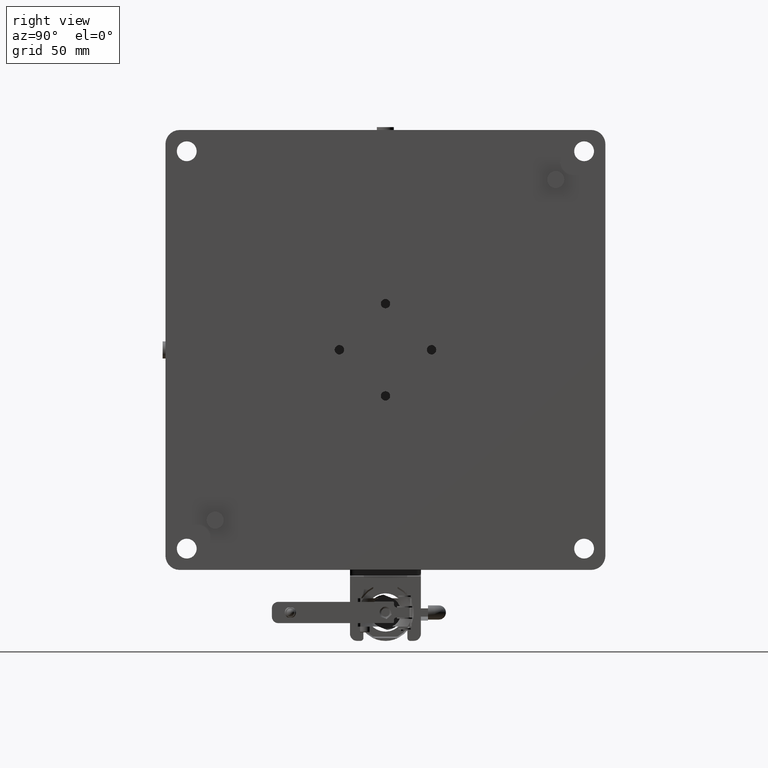
[diagram: clean part render]
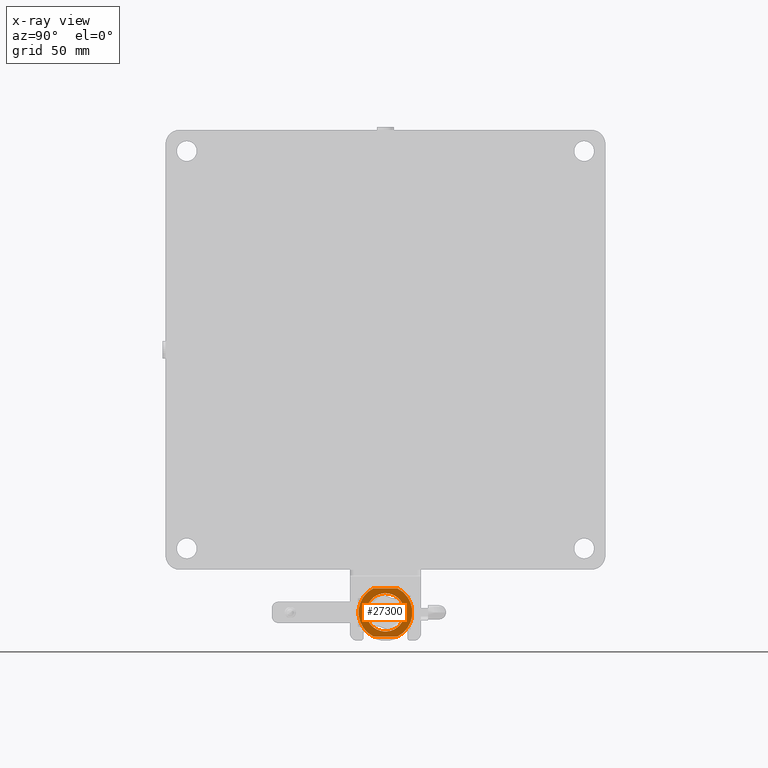
[diagram: x-ray — body ghosted, one internal face saturated and labeled with its STEP entity id]
A machine part, right view, then the same camera in x-ray: the body is ghosted and one INTERNAL B-rep face — a face not visible from any outside direction — is saturated and labeled: STEP entity #27300.
In plain terms, the highlighted planar face has unit normal (1, -0, 0).
Its self-contained STEP definition (entity closure, byte-faithful):
#69 = EDGE_LOOP ( 'NONE', ( #7535, #4747, #5148, #24424 ) ) ;
#293 = CARTESIAN_POINT ( 'NONE',  ( 479.3911129078834392, -41.04289610263640498, 408.5648634992779762 ) ) ;
#434 = CARTESIAN_POINT ( 'NONE',  ( 479.3911129078832687, -47.45056872749770349, 417.0784128677299236 ) ) ;
#555 = PLANE ( 'NONE',  #17380 ) ;
#581 = CARTESIAN_POINT ( 'NONE',  ( 479.3911129078835529, -47.25765047544710029, 416.3403203942483515 ) ) ;
#730 = CARTESIAN_POINT ( 'NONE',  ( 479.3911129078835529, -47.57188809067427115, 417.6388060067503147 ) ) ;
#876 = CARTESIAN_POINT ( 'NONE',  ( 479.3911129078834961, -47.60318222722764858, 417.8015413607919868 ) ) ;
#927 = CARTESIAN_POINT ( 'NONE',  ( 479.3911129078833824, -21.21593948174739097, 423.4883965237435177 ) ) ;
#1021 = CARTESIAN_POINT ( 'NONE',  ( 479.3911129078833255, -45.84672191892308746, 427.3341895144567957 ) ) ;
#1069 = CARTESIAN_POINT ( 'NONE',  ( 479.3911129078833824, -21.02678453667679648, 418.0046822516927136 ) ) ;
#1161 = CARTESIAN_POINT ( 'NONE',  ( 479.3911129078833824, -45.75595492385647844, 427.4789163047911416 ) ) ;
#1173 = EDGE_CURVE ( 'NONE', #13218, #12097, #15788, .T. ) ;
#1211 = CARTESIAN_POINT ( 'NONE',  ( 479.3911129078834961, -20.99699255121158714, 418.1826398307509862 ) ) ;
#1357 = CARTESIAN_POINT ( 'NONE',  ( 479.3911129078836098, -21.07895801851841000, 422.8474598087849472 ) ) ;
#1494 = CARTESIAN_POINT ( 'NONE',  ( 479.3911129078834392, -23.16281932563918744, 427.8646343223767303 ) ) ;
#1778 = CARTESIAN_POINT ( 'NONE',  ( 479.3911129078834392, -30.39016980294125858, 407.3590083248498104 ) ) ;
#1889 = CARTESIAN_POINT ( 'NONE',  ( 479.3911129078833824, -34.33325410461196725, 437.2834046956849079 ) ) ;
#2219 = CARTESIAN_POINT ( 'NONE',  ( 479.3911129078834392, -29.17891359950291275, 407.8058809639541664 ) ) ;
#2227 = CARTESIAN_POINT ( 'NONE',  ( 479.3911129078834392, -34.33325410461196725, 406.7834046956848510 ) ) ;
#2501 = CARTESIAN_POINT ( 'NONE',  ( 479.3911129078834392, -46.22601111404920005, 413.8662807799008192 ) ) ;
#2548 = CARTESIAN_POINT ( 'NONE',  ( 479.3911129078833824, -32.58882583326256110, 433.6730636150631994 ) ) ;
#2640 = CARTESIAN_POINT ( 'NONE',  ( 479.3911129078834961, -47.58755019070942183, 417.7193495826040248 ) ) ;
#2791 = CARTESIAN_POINT ( 'NONE',  ( 479.3911129078834961, -47.61719593827268682, 422.6891311296078584 ) ) ;
#2933 = CARTESIAN_POINT ( 'NONE',  ( 479.3911129078833824, -45.50368888359624009, 412.7021750689962118 ) ) ;
#3083 = CARTESIAN_POINT ( 'NONE',  ( 479.3911129078835529, -39.12404552979111116, 407.6618495588150495 ) ) ;
#3130 = CARTESIAN_POINT ( 'NONE',  ( 479.3911129078834392, -27.13774249562336038, 431.7061055149944764 ) ) ;
#3284 = CARTESIAN_POINT ( 'NONE',  ( 479.3911129078834392, -30.80955455592850711, 433.3283844254457335 ) ) ;
#3379 = CARTESIAN_POINT ( 'NONE',  ( 479.3911129078834392, -45.66455367140459742, 427.6219998205625643 ) ) ;
#3425 = CARTESIAN_POINT ( 'NONE',  ( 479.3911129078832687, -21.79118147795855265, 425.2781153142725543 ) ) ;
#3448 = CARTESIAN_POINT ( 'NONE',  ( 479.3911129078834961, -42.81853547885035027, 403.2834046956849079 ) ) ;
#3522 = CARTESIAN_POINT ( 'NONE',  ( 479.3911129078833824, -46.92529981338773837, 425.1507582753536667 ) ) ;
#3572 = CARTESIAN_POINT ( 'NONE',  ( 479.3911129078834392, -20.94357390681977193, 418.5390914353256449 ) ) ;
#3663 = CARTESIAN_POINT ( 'NONE',  ( 479.3911129078834392, -46.71754967553448523, 425.6767022661965711 ) ) ;
#3712 = CARTESIAN_POINT ( 'NONE',  ( 479.3911129078833824, -31.97830055202541999, 433.5764418044390709 ) ) ;
#3813 = CARTESIAN_POINT ( 'NONE',  ( 479.3911129078833255, -46.90546750695231282, 425.2017546050341252 ) ) ;
#3946 = DIRECTION ( 'NONE',  ( 1.000000000000000000, -1.387778780781444492E-15, 2.775557561562889379E-15 ) ) ;
#3996 = CARTESIAN_POINT ( 'NONE',  ( 479.3911129078833255, -28.63072426523984149, 408.0431156177031653 ) ) ;
#4747 = ORIENTED_EDGE ( 'NONE', *, *, #20475, .T. ) ;
#4850 = CARTESIAN_POINT ( 'NONE',  ( 479.3911129078835529, -46.84299604420902341, 415.2082515081424958 ) ) ;
#4995 = CARTESIAN_POINT ( 'NONE',  ( 479.3911129078834392, -45.88225337756322375, 413.2777593783931138 ) ) ;
#5122 = DIRECTION ( 'NONE',  ( -3.935894180986188723E-17, 1.000000000000000000, -3.935894180986187491E-17 ) ) ;
#5146 = CARTESIAN_POINT ( 'NONE',  ( 479.3911129078832687, -35.36267171817488730, 406.8115768864818165 ) ) ;
#5148 = ORIENTED_EDGE ( 'NONE', *, *, #8555, .T. ) ;
#5290 = CARTESIAN_POINT ( 'NONE',  ( 479.3911129078835529, -47.14966269157289958, 424.5349457023426112 ) ) ;
#5340 = CARTESIAN_POINT ( 'NONE',  ( 479.3911129078834392, -32.05449571968550515, 433.5898676141158035 ) ) ;
#5347 = VERTEX_POINT ( 'NONE', #28857 ) ;
#5442 = CARTESIAN_POINT ( 'NONE',  ( 479.3911129078833824, -36.61201248958536780, 406.9769417772540123 ) ) ;
#5488 = CARTESIAN_POINT ( 'NONE',  ( 479.3911129078834961, -29.41490419529635503, 432.8556180980339150 ) ) ;
#5586 = CARTESIAN_POINT ( 'NONE',  ( 479.3911129078833255, -35.97799190910641443, 433.7082788535595341 ) ) ;
#5638 = CARTESIAN_POINT ( 'NONE',  ( 479.3911129078834961, -21.13283425620549849, 423.1154509818686620 ) ) ;
#5734 = CARTESIAN_POINT ( 'NONE',  ( 479.3911129078833824, -39.35553245618345386, 432.8144661588661393 ) ) ;
#5762 = ORIENTED_EDGE ( 'NONE', *, *, #12264, .T. ) ;
#5777 = AXIS2_PLACEMENT_3D ( 'NONE', #15656, #15513, #19933 ) ;
#5779 = CARTESIAN_POINT ( 'NONE',  ( 479.3911129078834392, -31.44640937151697102, 433.4784084877641703 ) ) ;
#5869 = CARTESIAN_POINT ( 'NONE',  ( 479.3911129078834392, -46.89588657479356471, 425.2261820878060803 ) ) ;
#5918 = CARTESIAN_POINT ( 'NONE',  ( 479.3911129078834961, -21.77062163443012821, 415.3406273035665208 ) ) ;
#6199 = CARTESIAN_POINT ( 'NONE',  ( 479.3911129078834392, -22.81978629030382066, 413.2326198768796530 ) ) ;
#6340 = CARTESIAN_POINT ( 'NONE',  ( 479.3911129078833824, -26.84861717285739502, 409.0480323461864032 ) ) ;
#6487 = CARTESIAN_POINT ( 'NONE',  ( 479.3911129078834392, -25.63352840535150889, 409.9418403223812106 ) ) ;
#6642 = CARTESIAN_POINT ( 'NONE',  ( 479.3911129078833824, -26.89821163976415619, 409.0151602781526776 ) ) ;
#7069 = CARTESIAN_POINT ( 'NONE',  ( 479.3911129078834961, -45.60149852212632737, 412.8483622308094709 ) ) ;
#7203 = CARTESIAN_POINT ( 'NONE',  ( 479.3911129078835529, -47.04650717200176757, 415.7210387487189678 ) ) ;
#7352 = CARTESIAN_POINT ( 'NONE',  ( 479.3911129078834961, -47.61285274583664773, 422.7130094328859400 ) ) ;
#7503 = CARTESIAN_POINT ( 'NONE',  ( 479.3911129078835529, -34.74602836896479374, 406.7834046956848510 ) ) ;
#7535 = ORIENTED_EDGE ( 'NONE', *, *, #22567, .T. ) ;
#7655 = CARTESIAN_POINT ( 'NONE',  ( 479.3911129078835529, -36.68820765722600186, 406.9903675869309154 ) ) ;
#7702 = CARTESIAN_POINT ( 'NONE',  ( 479.3911129078833824, -21.82351216503194991, 425.3585578832606870 ) ) ;
#7800 = CARTESIAN_POINT ( 'NONE',  ( 479.3911129078836666, -36.84356708012489179, 433.5479832068118071 ) ) ;
#7848 = CARTESIAN_POINT ( 'NONE',  ( 479.3911129078833824, -20.90841239872669632, 421.9283178287251985 ) ) ;
#7937 = EDGE_LOOP ( 'NONE', ( #10155, #5762 ) ) ;
#7945 = CARTESIAN_POINT ( 'NONE',  ( 479.3911129078834392, -44.53792663617856107, 429.1705627042092033 ) ) ;
#7990 = CARTESIAN_POINT ( 'NONE',  ( 479.3911129078834392, -27.62361210684497337, 432.0019458922252511 ) ) ;
#8089 = CARTESIAN_POINT ( 'NONE',  ( 479.3911129078834392, -41.81789103636492655, 431.5187770451767619 ) ) ;
#8136 = CARTESIAN_POINT ( 'NONE',  ( 479.3911129078833255, -21.62000103723831756, 424.8457706427301446 ) ) ;
#8184 = CARTESIAN_POINT ( 'NONE',  ( 479.3911129078833824, -34.33325410461196014, 433.7834046956849647 ) ) ;
#8224 = CARTESIAN_POINT ( 'NONE',  ( 479.3911129078834392, -45.12293086061061587, 428.4505210995325797 ) ) ;
#8275 = CARTESIAN_POINT ( 'NONE',  ( 479.3911129078833824, -21.85573037285204023, 425.4377452007603893 ) ) ;
#8555 = EDGE_CURVE ( 'NONE', #21320, #13218, #11465, .T. ) ;
#8559 = CARTESIAN_POINT ( 'NONE',  ( 479.3911129078834392, -31.85138529070875180, 407.0134775871939041 ) ) ;
#8701 = CARTESIAN_POINT ( 'NONE',  ( 479.3911129078834392, -27.32760878709949637, 408.7344054228762502 ) ) ;
#8846 = CARTESIAN_POINT ( 'NONE',  ( 479.3911129078833824, -29.77088815751205431, 407.5701516282952070 ) ) ;
#9269 = CARTESIAN_POINT ( 'NONE',  ( 479.3911129078834961, -39.25160401395407916, 407.7111912933436884 ) ) ;
#9419 = CARTESIAN_POINT ( 'NONE',  ( 479.3911129078834392, -47.59783261572695778, 417.7730917201383249 ) ) ;
#9562 = CARTESIAN_POINT ( 'NONE',  ( 479.3911129078834392, -39.20060768426661468, 407.6913589869073462 ) ) ;
#9643 = VERTEX_POINT ( 'NONE', #2227 ) ;
#9713 = CARTESIAN_POINT ( 'NONE',  ( 479.3911129078834961, -47.62629510807609279, 422.6383371971647307 ) ) ;
#9863 = CARTESIAN_POINT ( 'NONE',  ( 479.3911129078834961, -36.76285884181676522, 407.0038060544607106 ) ) ;
#9914 = CARTESIAN_POINT ( 'NONE',  ( 479.3911129078834392, -29.72158132631732741, 432.9721419438830026 ) ) ;
#10008 = CARTESIAN_POINT ( 'NONE',  ( 479.3911129078834392, -38.89562005130579792, 432.9966577631706173 ) ) ;
#10055 = CARTESIAN_POINT ( 'NONE',  ( 479.3911129078835529, -29.46590052500906864, 432.8754504044774762 ) ) ;
#10152 = CARTESIAN_POINT ( 'NONE',  ( 479.3911129078833824, -39.32796472322169734, 432.8254773223313236 ) ) ;
#10155 = ORIENTED_EDGE ( 'NONE', *, *, #23424, .T. ) ;
#10196 = CARTESIAN_POINT ( 'NONE',  ( 479.3911129078835529, -21.51684551760859421, 416.0318636891767596 ) ) ;
#10339 = CARTESIAN_POINT ( 'NONE',  ( 479.3911129078834392, -28.31968565452520181, 432.3852275639279696 ) ) ;
#10430 = CARTESIAN_POINT ( 'NONE',  ( 479.3911129078833255, -43.54983015785627032, 430.1587380104502927 ) ) ;
#10477 = CARTESIAN_POINT ( 'NONE',  ( 479.3911129078833255, -22.78425483173158028, 427.2890500131156273 ) ) ;
#10573 = CARTESIAN_POINT ( 'NONE',  ( 479.3911129078833255, -37.53824593220947747, 433.4007193186963605 ) ) ;
#10765 = CARTESIAN_POINT ( 'NONE',  ( 479.3911129078836098, -24.12858157305862150, 411.3962466872166033 ) ) ;
#10909 = CARTESIAN_POINT ( 'NONE',  ( 479.3911129078834392, -34.33325410461196725, 406.7834046956848510 ) ) ;
#11053 = CARTESIAN_POINT ( 'NONE',  ( 479.3911129078833255, -22.61471290826214897, 413.5737626975258081 ) ) ;
#11202 = CARTESIAN_POINT ( 'NONE',  ( 479.3911129078834961, -29.33854348602758932, 407.7413320690324667 ) ) ;
#11465 = LINE ( 'NONE', #16180, #20564 ) ;
#11486 = CARTESIAN_POINT ( 'NONE',  ( 479.3911129078834392, -46.57354318278053285, 414.5808748566024633 ) ) ;
#11631 = CARTESIAN_POINT ( 'NONE',  ( 479.3911129078833824, -36.73899132082330254, 406.9994648568755906 ) ) ;
#11784 = CARTESIAN_POINT ( 'NONE',  ( 479.3911129078834392, -46.87532673126436578, 415.2886940770922024 ) ) ;
#11925 = CARTESIAN_POINT ( 'NONE',  ( 479.3911129078833255, -46.73392956118730979, 414.9451683386891432 ) ) ;
#12067 = CARTESIAN_POINT ( 'NONE',  ( 479.3911129078835529, -41.62492195711173082, 408.9218548515335101 ) ) ;
#12097 = VERTEX_POINT ( 'NONE', #26982 ) ;
#12116 = CARTESIAN_POINT ( 'NONE',  ( 479.3911129078834961, -26.16613770088115487, 431.0730814518123566 ) ) ;
#12264 = EDGE_CURVE ( 'NONE', #9643, #20051, #16424, .T. ) ;
#12270 = CARTESIAN_POINT ( 'NONE',  ( 479.3911129078835529, -30.08171309831453044, 433.0998132827378981 ) ) ;
#12357 = CARTESIAN_POINT ( 'NONE',  ( 479.3911129078836098, -36.81512291852185115, 433.5533318041757980 ) ) ;
#12405 = CARTESIAN_POINT ( 'NONE',  ( 479.3911129078833824, -21.06332598199636408, 422.7652680305776016 ) ) ;
#12482 = AXIS2_PLACEMENT_3D ( 'NONE', #23852, #3946, #19434 ) ;
#12549 = CARTESIAN_POINT ( 'NONE',  ( 479.3911129078834961, -21.74120839582843701, 415.4160511160435476 ) ) ;
#12645 = CARTESIAN_POINT ( 'NONE',  ( 479.3911129078833824, -45.69480394875381535, 427.5750725481989321 ) ) ;
#12696 = CARTESIAN_POINT ( 'NONE',  ( 479.3911129078833824, -31.92751688841470425, 433.5673445344941115 ) ) ;
#12791 = CARTESIAN_POINT ( 'NONE',  ( 479.3911129078833824, -41.76829656947717950, 431.5516491132017904 ) ) ;
#12818 = CIRCLE ( 'NONE', #5777, 18.99999999999990763 ) ;
#12838 = CARTESIAN_POINT ( 'NONE',  ( 479.3911129078834961, -26.75202447789099836, 409.1129699167227045 ) ) ;
#12981 = CARTESIAN_POINT ( 'NONE',  ( 479.3911129078833255, -23.00195453781848087, 412.9448095708037272 ) ) ;
#13126 = CARTESIAN_POINT ( 'NONE',  ( 479.3911129078834961, -22.23143123662289256, 414.2698362450757941 ) ) ;
#13218 = VERTEX_POINT ( 'NONE', #15481 ) ;
#13523 = FACE_OUTER_BOUND ( 'NONE', #69, .T. ) ;
#13675 = DIRECTION ( 'NONE',  ( 1.000000000000000000, -1.103669752617475332E-16, 3.434961711792377367E-15 ) ) ;
#13835 = CARTESIAN_POINT ( 'NONE',  ( 479.3911129078836098, -46.86431556779582053, 415.2611263441234541 ) ) ;
#13978 = CARTESIAN_POINT ( 'NONE',  ( 479.3911129078833255, -43.22041211298489571, 410.0787321639908214 ) ) ;
#14132 = CARTESIAN_POINT ( 'NONE',  ( 479.3911129078834392, -41.52876571369098713, 408.8607038764220647 ) ) ;
#14276 = CARTESIAN_POINT ( 'NONE',  ( 479.3911129078834961, -47.02199135275643727, 424.8950774741896907 ) ) ;
#14324 = CARTESIAN_POINT ( 'NONE',  ( 479.3911129078834961, -29.39047671247486448, 432.8460371658576946 ) ) ;
#14429 = CARTESIAN_POINT ( 'NONE',  ( 479.3911129078834392, -38.58479511119212191, 407.4669961087138290 ) ) ;
#14475 = CARTESIAN_POINT ( 'NONE',  ( 479.3911129078834392, -23.49650253699050850, 428.3402346142379429 ) ) ;
#14577 = CARTESIAN_POINT ( 'NONE',  ( 479.3911129078833255, -42.39008402323946711, 431.1201562632396076 ) ) ;
#14629 = CARTESIAN_POINT ( 'NONE',  ( 479.3911129078835529, -20.83323789248708380, 419.8707180588675101 ) ) ;
#14719 = CARTESIAN_POINT ( 'NONE',  ( 479.3911129078833255, -40.03578394380112115, 432.5236937738273468 ) ) ;
#14765 = CARTESIAN_POINT ( 'NONE',  ( 479.3911129078833824, -23.99168973126824511, 428.9831303948342907 ) ) ;
#14863 = CARTESIAN_POINT ( 'NONE',  ( 479.3911129078835529, -39.48759460966384438, 432.7609284274658989 ) ) ;
#14908 = CARTESIAN_POINT ( 'NONE',  ( 479.3911129078833824, -21.94895853369336081, 414.8901071251298163 ) ) ;
#15003 = CARTESIAN_POINT ( 'NONE',  ( 479.3911129078834392, -41.91448373132990213, 431.4538394746343215 ) ) ;
#15193 = CARTESIAN_POINT ( 'NONE',  ( 479.3911129078834392, -25.11667805136103127, 410.4080713808916130 ) ) ;
#15481 = CARTESIAN_POINT ( 'NONE',  ( 479.3911129078836098, -25.84797273037352383, 403.2834046956847942 ) ) ;
#15490 = CARTESIAN_POINT ( 'NONE',  ( 479.3911129078834392, -27.91613018844147476, 408.3906476864970614 ) ) ;
#15513 = DIRECTION ( 'NONE',  ( 1.000000000000000000, -1.387778780781444492E-15, 2.775557561562889379E-15 ) ) ;
#15598 = LINE ( 'NONE', #1889, #21813 ) ;
#15656 = CARTESIAN_POINT ( 'NONE',  ( 479.3911129078834392, -34.33325410461196725, 420.2834046956849079 ) ) ;
#15788 = CIRCLE ( 'NONE', #12482, 19.00000000000007105 ) ;
#15886 = FACE_BOUND ( 'NONE', #7937, .T. ) ;
#15967 = CARTESIAN_POINT ( 'NONE',  ( 479.3911129078833824, -34.33325410461196014, 433.7834046956849647 ) ) ;
#16061 = CARTESIAN_POINT ( 'NONE',  ( 479.3911129078833824, -46.81077783640095902, 415.1290641906663268 ) ) ;
#16180 = CARTESIAN_POINT ( 'NONE',  ( 479.3911129078834961, -10.55201857732272330, 403.2834046956848510 ) ) ;
#16199 = CARTESIAN_POINT ( 'NONE',  ( 479.3911129078834392, -47.72293430240596024, 422.0277179561099388 ) ) ;
#16343 = CARTESIAN_POINT ( 'NONE',  ( 479.3911129078833824, -47.66951565801336699, 422.3841695606570852 ) ) ;
#16424 = B_SPLINE_CURVE_WITH_KNOTS ( 'NONE', 3,
 ( #16641, #7503, #5146, #23276, #25344, #5442, #7655, #11631, #9863, #25637, #25055, #14429, #16502, #3083, #9562, #9269, #20628, #20923, #20485, #293, #18269, #14132, #12067, #18712, #21071, #13978, #27268, #23125, #22831, #18559, #2933, #27410, #7069, #4995, #2501, #11486, #11925, #16061, #4850, #13835, #11784, #7203, #581, #434, #25196, #730, #2640, #9419, #876, #18417, #27703, #27559, #18862, #16199, #16343, #22976, #9713, #2791, #7352, #25494, #20781, #5290, #14276, #27854, #3522, #3813, #5869, #3663, #21366, #23575, #1021, #1161, #12645, #3379, #8224, #7945, #10430, #21506, #14577, #25934, #15003, #8089, #12791, #16933, #27993, #14719, #21794, #14863, #17072, #5734, #10152, #10008, #19152, #10573, #26367, #19007, #19297, #7800, #12357, #5586, #28145, #16790 ),
 .UNSPECIFIED., .F., .F.,
 ( 4, 1, 1, 1, 1, 2, 2, 1, 1, 1, 1, 2, 2, 1, 1, 1, 2, 2, 2, 1, 1, 1, 2, 2, 1, 1, 1, 1, 2, 2, 1, 1, 1, 1, 2, 2, 2, 1, 1, 1, 1, 2, 2, 1, 1, 1, 1, 2, 2, 1, 1, 1, 2, 2, 2, 1, 1, 1, 2, 2, 1, 1, 1, 1, 2, 2, 1, 1, 1, 1, 2, 2, 4 ),
 ( 0.000000000000000000, 0.03125000000001215000, 0.04687500000001822154, 0.05468750000002123302, 0.05859375000002281508, 0.06054687500002386980, 0.06250000000002491063, 0.09375000000004268808, 0.1093750000000518752, 0.1171875000000564687, 0.1210937500000578565, 0.1230468750000587724, 0.1250000000000597022, 0.1562500000000732747, 0.1718750000000798528, 0.1796875000000831279, 0.1835937500000839884, 0.1875000000000848488, 0.2500000000001081357, 0.2812500000001211253, 0.2968750000001259548, 0.3046875000001283973, 0.3085937500001297296, 0.3125000000001311173, 0.3437500000001363354, 0.3593750000001389444, 0.3671875000001401657, 0.3710937500001423861, 0.3730468750001452727, 0.3750000000001481593, 0.4062500000002022826, 0.4218750000002294276, 0.4296875000002429723, 0.4335937500002497447, 0.4355468750002512435, 0.4375000000002526868, 0.5000000000002651213, 0.5312500000002733369, 0.5468750000002754463, 0.5546875000002744471, 0.5585937500002717826, 0.5605468750002704503, 0.5625000000002691181, 0.5937500000002319256, 0.6093750000002114975, 0.6171875000001992850, 0.6210937500001931788, 0.6230468750001900702, 0.6250000000001869616, 0.6562500000001626477, 0.6718750000001505462, 0.6796875000001445510, 0.6835937500001433298, 0.6875000000001421085, 0.7500000000001102451, 0.7812500000000957012, 0.7968750000000884848, 0.8046875000000839329, 0.8085937500000806022, 0.8125000000000771605, 0.8437500000000509592, 0.8593750000000376366, 0.8671875000000319744, 0.8710937500000286438, 0.8730468750000266454, 0.8750000000000247580, 0.9062500000000144329, 0.9218750000000092149, 0.9296875000000066613, 0.9335937500000056621, 0.9355468750000052180, 0.9375000000000047740, 1.000000000000000000 ),
 .UNSPECIFIED. ) ;
#16502 = CARTESIAN_POINT ( 'NONE',  ( 479.3911129078836098, -38.94492688307153117, 407.5946674475345048 ) ) ;
#16641 = CARTESIAN_POINT ( 'NONE',  ( 479.3911129078834392, -34.33325410461196725, 406.7834046956848510 ) ) ;
#16691 = CARTESIAN_POINT ( 'NONE',  ( 479.3911129078834961, -21.06867559349895203, 422.7937176712410974 ) ) ;
#16790 = CARTESIAN_POINT ( 'NONE',  ( 479.3911129078833824, -34.33325410461196014, 433.7834046956849647 ) ) ;
#16835 = CARTESIAN_POINT ( 'NONE',  ( 479.3911129078833824, -22.09296502653642236, 425.9859345349496493 ) ) ;
#16933 = CARTESIAN_POINT ( 'NONE',  ( 479.3911129078834392, -41.33889942198506162, 431.8324039686162905 ) ) ;
#16981 = CARTESIAN_POINT ( 'NONE',  ( 479.3911129078833824, -21.71169896773190189, 415.4926132705282384 ) ) ;
#17072 = CARTESIAN_POINT ( 'NONE',  ( 479.3911129078834961, -39.40840729217391214, 432.7931466352771963 ) ) ;
#17120 = CARTESIAN_POINT ( 'NONE',  ( 479.3911129078834961, -21.76104070226763199, 415.3650547863496172 ) ) ;
#17260 = CARTESIAN_POINT ( 'NONE',  ( 479.3911129078834392, -21.93257864809090307, 425.6216410527870835 ) ) ;
#17380 = AXIS2_PLACEMENT_3D ( 'NONE', #22798, #13675, #22517 ) ;
#17408 = CARTESIAN_POINT ( 'NONE',  ( 479.3911129078834392, -31.68865541562265875, 407.0447707096225827 ) ) ;
#17850 = CARTESIAN_POINT ( 'NONE',  ( 479.3911129078834392, -32.68851629990467700, 406.8585305378102817 ) ) ;
#18269 = CARTESIAN_POINT ( 'NONE',  ( 479.3911129078834961, -41.38403892333882084, 408.7699368813433694 ) ) ;
#18417 = CARTESIAN_POINT ( 'NONE',  ( 479.3911129078836098, -47.75809581049453811, 418.6384915626451289 ) ) ;
#18559 = CARTESIAN_POINT ( 'NONE',  ( 479.3911129078835529, -45.40541200922361043, 412.5579985926569293 ) ) ;
#18712 = CARTESIAN_POINT ( 'NONE',  ( 479.3911129078835529, -41.67184922949361692, 408.9521051288948001 ) ) ;
#18862 = CARTESIAN_POINT ( 'NONE',  ( 479.3911129078833824, -47.80511028503583049, 421.3126689611482334 ) ) ;
#18911 = CARTESIAN_POINT ( 'NONE',  ( 479.3911129078833255, -23.26109620001941281, 428.0088107987183434 ) ) ;
#19007 = CARTESIAN_POINT ( 'NONE',  ( 479.3911129078834961, -36.97785279343471387, 433.5220386817863982 ) ) ;
#19054 = CARTESIAN_POINT ( 'NONE',  ( 479.3911129078834961, -21.04021310114815790, 417.9284721942170790 ) ) ;
#19152 = CARTESIAN_POINT ( 'NONE',  ( 479.3911129078833255, -38.27633840557202660, 433.2078010666878072 ) ) ;
#19195 = CARTESIAN_POINT ( 'NONE',  ( 479.3911129078834392, -21.64451685644272061, 415.6717319172674934 ) ) ;
#19297 = CARTESIAN_POINT ( 'NONE',  ( 479.3911129078835529, -36.89730921762740223, 433.5377007818054835 ) ) ;
#19346 = CARTESIAN_POINT ( 'NONE',  ( 479.3911129078834961, -21.05365546338930471, 417.8537999584765998 ) ) ;
#19434 = DIRECTION ( 'NONE',  ( 2.921639538487243217E-15, 0.000000000000000000, -1.000000000000000000 ) ) ;
#19481 = CARTESIAN_POINT ( 'NONE',  ( 479.3911129078833255, -28.93995653435541016, 432.6677002667484544 ) ) ;
#19624 = CARTESIAN_POINT ( 'NONE',  ( 479.3911129078835529, -33.50735003575935878, 406.7834046956848510 ) ) ;
#19770 = CARTESIAN_POINT ( 'NONE',  ( 479.3911129078833824, -31.76919899149896409, 407.0291086095874107 ) ) ;
#19933 = DIRECTION ( 'NONE',  ( 2.921639538487268066E-15, 0.000000000000000000, -1.000000000000000000 ) ) ;
#20051 = VERTEX_POINT ( 'NONE', #8184 ) ;
#20062 = CARTESIAN_POINT ( 'NONE',  ( 479.3911129078835529, -29.31097575302331748, 407.7523432325183990 ) ) ;
#20212 = CARTESIAN_POINT ( 'NONE',  ( 479.3911129078833824, -31.12826227648147892, 407.1660900727991930 ) ) ;
#20475 = EDGE_CURVE ( 'NONE', #5347, #21320, #12818, .T. ) ;
#20485 = CARTESIAN_POINT ( 'NONE',  ( 479.3911129078834392, -40.34682255504197457, 408.1815818276194818 ) ) ;
#20564 = VECTOR ( 'NONE', #5122, 1000.000000000000000 ) ;
#20628 = CARTESIAN_POINT ( 'NONE',  ( 479.3911129078834961, -39.27603149673679894, 407.7207722255058684 ) ) ;
#20781 = CARTESIAN_POINT ( 'NONE',  ( 479.3911129078833824, -47.37823383425021717, 423.8071042448485741 ) ) ;
#20792 = B_SPLINE_CURVE_WITH_KNOTS ( 'NONE', 3,
 ( #15967, #24964, #22740, #2548, #23325, #5340, #3712, #12696, #28045, #5779, #3284, #12270, #9914, #21552, #10055, #5488, #14324, #19481, #10339, #7990, #26116, #3130, #23901, #25687, #12116, #21704, #28480, #14765, #14475, #18911, #1494, #28337, #25977, #10477, #21413, #16835, #17260, #8275, #7702, #28190, #3425, #8136, #21123, #927, #5638, #27900, #1357, #16691, #12405, #7848, #23473, #14629, #21270, #3572, #1211, #1069, #19054, #23758, #19346, #25831, #23621, #10196, #19195, #16981, #12549, #17120, #5918, #14908, #13126, #11053, #6199, #26703, #24187, #12981, #29056, #10765, #15193, #6487, #22412, #26415, #12838, #6340, #6642, #8701, #15490, #3996, #21981, #2219, #24484, #20062, #11202, #8846, #1778, #20212, #26854, #17408, #19770, #28772, #8559, #17850, #19624, #10909 ),
 .UNSPECIFIED., .F., .F.,
 ( 4, 1, 1, 1, 1, 2, 2, 1, 1, 1, 1, 2, 2, 1, 1, 1, 2, 2, 2, 1, 1, 1, 2, 2, 1, 1, 1, 1, 2, 2, 1, 1, 1, 1, 2, 2, 2, 1, 1, 1, 1, 2, 2, 1, 1, 1, 1, 2, 2, 1, 1, 1, 2, 2, 2, 1, 1, 1, 2, 2, 1, 1, 1, 1, 2, 2, 1, 1, 1, 1, 2, 2, 4 ),
 ( 0.000000000000000000, 0.03124999999995980299, 0.04687499999993970101, 0.05468749999992994493, 0.05859374999992447014, 0.06054687499992147254, 0.06249999999991847494, 0.09374999999987494725, 0.1093749999998537142, 0.1171874999998437500, 0.1210937499998387679, 0.1230468749998361588, 0.1249999999998335498, 0.1562499999997891686, 0.1718749999997668809, 0.1796874999997557232, 0.1835937499997501443, 0.1874999999997445654, 0.2499999999996761479, 0.2812499999996432853, 0.2968749999996268540, 0.3046874999996201927, 0.3085937499996183608, 0.3124999999996165845, 0.3437499999995926037, 0.3593749999995788924, 0.3671874999995720090, 0.3710937499995685118, 0.3730468749995668465, 0.3749999999995651256, 0.4062499999995375366, 0.4218749999995237698, 0.4296874999995168865, 0.4335937499995115019, 0.4355468749995068944, 0.4374999999995022315, 0.4999999999994024780, 0.5312499999993505195, 0.5468749999993266497, 0.5546874999993167688, 0.5585937499993097743, 0.5605468749993084421, 0.5624999999993069988, 0.5937499999993116617, 0.6093749999993139932, 0.6171874999993151034, 0.6210937499993138822, 0.6230468749993151034, 0.6249999999993164357, 0.6562499999993610666, 0.6718749999993817168, 0.6796874999993919308, 0.6835937499993988142, 0.6874999999994056976, 0.7499999999995274891, 0.7812499999995897726, 0.7968749999996208588, 0.8046874999996352917, 0.8085937499996436184, 0.8124999999996518341, 0.8437499999997151168, 0.8593749999997467581, 0.8671874999997633005, 0.8710937499997708500, 0.8730468749997745137, 0.8749999999997781774, 0.9062499999998321343, 0.9218749999998592237, 0.9296874999998732125, 0.9335937499998803180, 0.9355468749998840927, 0.9374999999998877565, 1.000000000000000000 ),
 .UNSPECIFIED. ) ;
#20923 = CARTESIAN_POINT ( 'NONE',  ( 479.3911129078834961, -39.72655167506464124, 407.8991091247226564 ) ) ;
#21071 = CARTESIAN_POINT ( 'NONE',  ( 479.3911129078834392, -42.50037050839620889, 409.4937279396468170 ) ) ;
#21123 = CARTESIAN_POINT ( 'NONE',  ( 479.3911129078833824, -21.40885773380508539, 424.2264889972598212 ) ) ;
#21270 = CARTESIAN_POINT ( 'NONE',  ( 479.3911129078832687, -20.86139792419047012, 419.2541404303088370 ) ) ;
#21320 = VERTEX_POINT ( 'NONE', #3448 ) ;
#21366 = CARTESIAN_POINT ( 'NONE',  ( 479.3911129078834392, -46.43507697260785250, 426.2969731462183063 ) ) ;
#21413 = CARTESIAN_POINT ( 'NONE',  ( 479.3911129078833824, -22.44049709529879166, 426.7005286117124570 ) ) ;
#21506 = CARTESIAN_POINT ( 'NONE',  ( 479.3911129078835529, -43.03297980386085442, 430.6249690689397767 ) ) ;
#21552 = CARTESIAN_POINT ( 'NONE',  ( 479.3911129078834392, -29.54246267952118643, 432.9049598325803458 ) ) ;
#21704 = CARTESIAN_POINT ( 'NONE',  ( 479.3911129078833824, -25.44609609618911961, 430.4880772273649541 ) ) ;
#21794 = CARTESIAN_POINT ( 'NONE',  ( 479.3911129078833824, -39.67149046167001814, 432.6840801522448601 ) ) ;
#21813 = VECTOR ( 'NONE', #22522, 1000.000000000000000 ) ;
#21981 = CARTESIAN_POINT ( 'NONE',  ( 479.3911129078834392, -28.99501774744719285, 407.8827292392185200 ) ) ;
#22412 = CARTESIAN_POINT ( 'NONE',  ( 479.3911129078834961, -26.27642418597577034, 409.4466531280935442 ) ) ;
#22517 = DIRECTION ( 'NONE',  ( 3.434961711792377367E-15, 0.000000000000000000, -1.000000000000000000 ) ) ;
#22522 = DIRECTION ( 'NONE',  ( -1.103669752617475332E-16, -1.000000000000000000, -3.791063342704392685E-31 ) ) ;
#22567 = EDGE_CURVE ( 'NONE', #12097, #5347, #15598, .T. ) ;
#22740 = CARTESIAN_POINT ( 'NONE',  ( 479.3911129078833824, -33.30383649124927814, 433.7552325048878856 ) ) ;
#22798 = CARTESIAN_POINT ( 'NONE',  ( 479.3911129078834961, -34.33325410461196725, 397.2834046956848510 ) ) ;
#22831 = CARTESIAN_POINT ( 'NONE',  ( 479.3911129078834392, -45.17000567226611452, 412.2265747771409110 ) ) ;
#22976 = CARTESIAN_POINT ( 'NONE',  ( 479.3911129078834392, -47.63972367254768869, 422.5621271396974521 ) ) ;
#23125 = CARTESIAN_POINT ( 'NONE',  ( 479.3911129078833255, -44.67481847799928829, 411.5836789965472917 ) ) ;
#23276 = CARTESIAN_POINT ( 'NONE',  ( 479.3911129078834392, -36.07768237611155371, 406.8937457763066163 ) ) ;
#23325 = CARTESIAN_POINT ( 'NONE',  ( 479.3911129078832687, -32.23242214993376109, 433.6196538366772302 ) ) ;
#23424 = EDGE_CURVE ( 'NONE', #20051, #9643, #20792, .T. ) ;
#23473 = CARTESIAN_POINT ( 'NONE',  ( 479.3911129078834961, -20.83328652886167376, 421.1087779693195330 ) ) ;
#23575 = CARTESIAN_POINT ( 'NONE',  ( 479.3911129078834392, -46.05179530096688723, 426.9930466937868232 ) ) ;
#23621 = CARTESIAN_POINT ( 'NONE',  ( 479.3911129078834961, -21.28827437491710839, 416.7597051467205347 ) ) ;
#23758 = CARTESIAN_POINT ( 'NONE',  ( 479.3911129078834392, -21.04931227095141466, 417.8776782617679260 ) ) ;
#23852 = CARTESIAN_POINT ( 'NONE',  ( 479.3911129078836098, -34.33325410461196725, 420.2834046956849079 ) ) ;
#23901 = CARTESIAN_POINT ( 'NONE',  ( 479.3911129078833255, -27.04158625215971057, 431.6449545398609189 ) ) ;
#24187 = CARTESIAN_POINT ( 'NONE',  ( 479.3911129078834961, -22.97170426047104996, 412.9917368431603109 ) ) ;
#24424 = ORIENTED_EDGE ( 'NONE', *, *, #1173, .T. ) ;
#24484 = CARTESIAN_POINT ( 'NONE',  ( 479.3911129078832687, -29.25810091701650606, 407.7736627561218938 ) ) ;
#24964 = CARTESIAN_POINT ( 'NONE',  ( 479.3911129078833824, -33.92047984037356656, 433.7834046956849079 ) ) ;
#25055 = CARTESIAN_POINT ( 'NONE',  ( 479.3911129078834961, -37.85695365367239162, 407.2384249660330511 ) ) ;
#25196 = CARTESIAN_POINT ( 'NONE',  ( 479.3911129078834392, -47.53367395303080656, 417.4513584095617489 ) ) ;
#25344 = CARTESIAN_POINT ( 'NONE',  ( 479.3911129078835529, -36.43408605937779043, 406.9471555546926425 ) ) ;
#25494 = CARTESIAN_POINT ( 'NONE',  ( 479.3911129078832687, -47.52825789662119860, 423.1702494290542518 ) ) ;
#25637 = CARTESIAN_POINT ( 'NONE',  ( 479.3911129078835529, -37.22009883792237872, 407.0884009036678890 ) ) ;
#25687 = CARTESIAN_POINT ( 'NONE',  ( 479.3911129078833255, -26.99465897972698869, 431.6147042624694450 ) ) ;
#25831 = CARTESIAN_POINT ( 'NONE',  ( 479.3911129078833255, -21.13825031257036002, 417.3965599624293645 ) ) ;
#25934 = CARTESIAN_POINT ( 'NONE',  ( 479.3911129078834392, -42.05866020768878144, 431.3555626002387271 ) ) ;
#25977 = CARTESIAN_POINT ( 'NONE',  ( 479.3911129078833824, -23.06500968708872534, 427.7184471605428371 ) ) ;
#26116 = CARTESIAN_POINT ( 'NONE',  ( 479.3911129078834392, -27.28246928603527621, 431.7968725101041514 ) ) ;
#26367 = CARTESIAN_POINT ( 'NONE',  ( 479.3911129078836098, -37.16530039052658907, 433.4838245441772528 ) ) ;
#26415 = CARTESIAN_POINT ( 'NONE',  ( 479.3911129078834392, -26.60784800153011176, 409.2112467911098292 ) ) ;
#26703 = CARTESIAN_POINT ( 'NONE',  ( 479.3911129078833255, -22.91055328536923952, 413.0878930865585517 ) ) ;
#26854 = CARTESIAN_POINT ( 'NONE',  ( 479.3911129078834392, -31.50120781838645101, 407.0829848472661183 ) ) ;
#26982 = CARTESIAN_POINT ( 'NONE',  ( 479.3911129078834961, -25.84797273037327869, 437.2834046956849079 ) ) ;
#27268 = CARTESIAN_POINT ( 'NONE',  ( 479.3911129078836098, -44.20858741945308878, 411.0668286425042766 ) ) ;
#27300 = ADVANCED_FACE ( 'NONE', ( #13523, #15886 ), #555, .T. ) ;
#27410 = CARTESIAN_POINT ( 'NONE',  ( 479.3911129078833255, -45.56862645412198987, 412.7987677639471258 ) ) ;
#27559 = CARTESIAN_POINT ( 'NONE',  ( 479.3911129078836098, -47.83327031673819363, 420.6960913325524984 ) ) ;
#27703 = CARTESIAN_POINT ( 'NONE',  ( 479.3911129078835529, -47.83322168035955002, 419.4580314219500679 ) ) ;
#27854 = CARTESIAN_POINT ( 'NONE',  ( 479.3911129078835529, -46.95480924147875612, 425.0741961208883026 ) ) ;
#27900 = CARTESIAN_POINT ( 'NONE',  ( 479.3911129078833824, -21.09462011855626073, 422.9280033846516744 ) ) ;
#27993 = CARTESIAN_POINT ( 'NONE',  ( 479.3911129078835529, -40.75037802053853397, 432.1761617050874520 ) ) ;
#28045 = CARTESIAN_POINT ( 'NONE',  ( 479.3911129078833255, -31.90364936739369028, 433.5630033369051830 ) ) ;
#28145 = CARTESIAN_POINT ( 'NONE',  ( 479.3911129078832687, -35.15915817325177528, 433.7834046956849647 ) ) ;
#28190 = CARTESIAN_POINT ( 'NONE',  ( 479.3911129078833824, -21.80219264143682878, 425.3056830472634715 ) ) ;
#28337 = CARTESIAN_POINT ( 'NONE',  ( 479.3911129078833824, -23.09788175510796648, 427.7680416274240542 ) ) ;
#28480 = CARTESIAN_POINT ( 'NONE',  ( 479.3911129078834392, -24.45792078979577155, 429.4999807488724173 ) ) ;
#28772 = CARTESIAN_POINT ( 'NONE',  ( 479.3911129078835529, -31.82294112904907735, 407.0188261845699458 ) ) ;
#28857 = CARTESIAN_POINT ( 'NONE',  ( 479.3911129078833824, -42.81853547885046396, 437.2834046956849079 ) ) ;
#29056 = CARTESIAN_POINT ( 'NONE',  ( 479.3911129078834961, -23.54357734862692553, 412.1162882918928858 ) ) ;